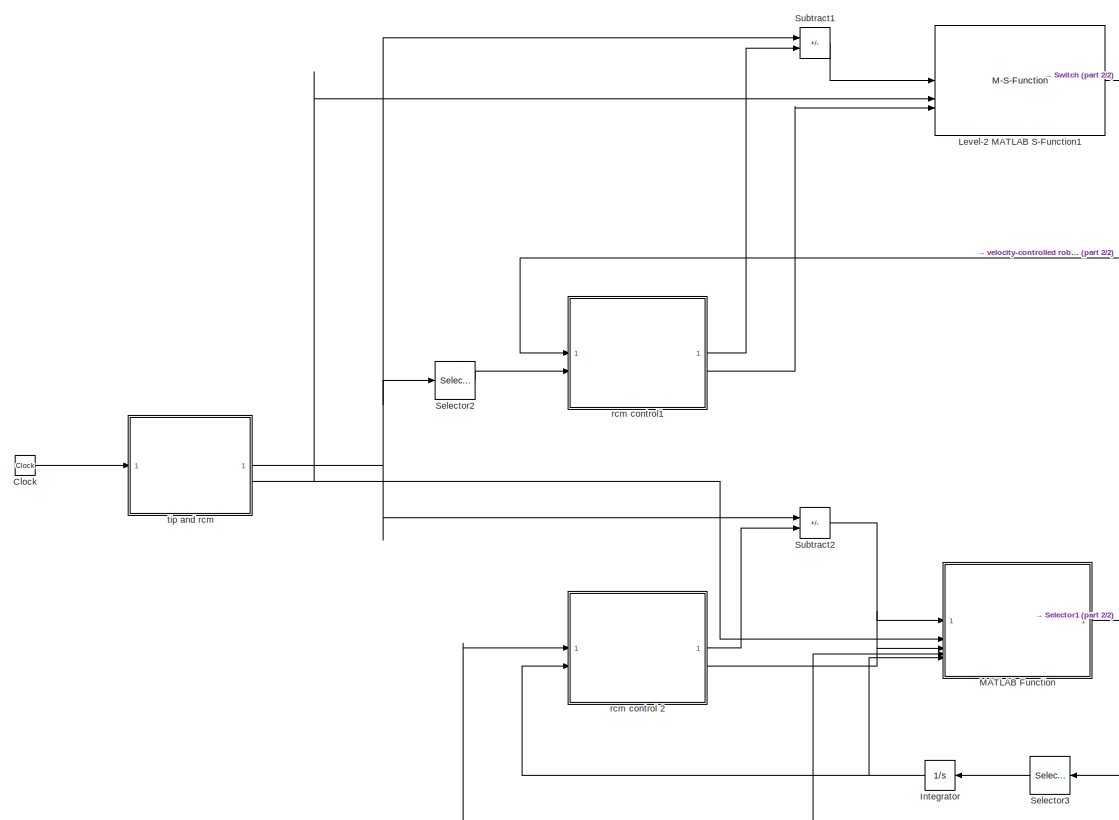
[diagram: root canvas - part 1/2, left side, full height]
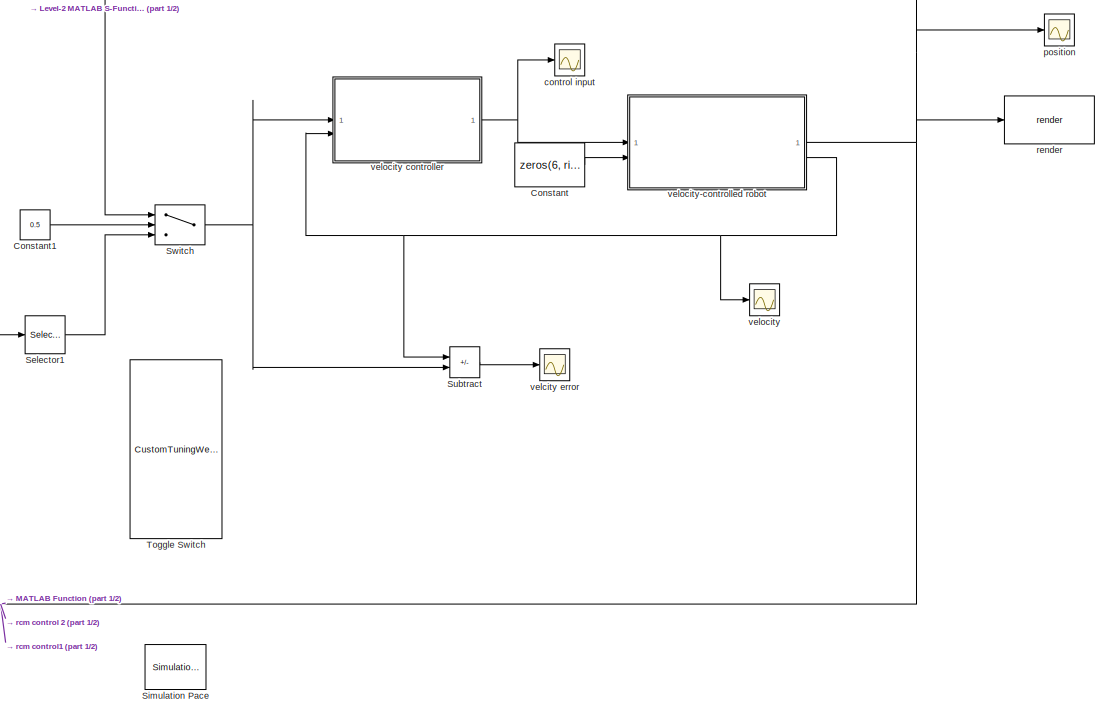
[diagram: root canvas - part 2/2, middle right region]
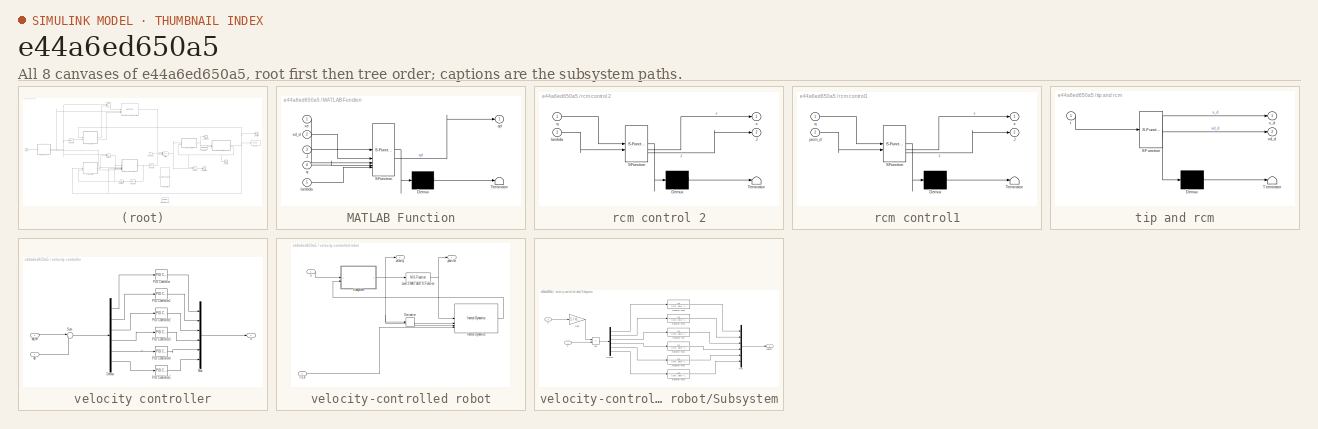
[diagram: thumbnail index - all 8 canvases of the model, root first then tree order]
MODEL slx_e44a6ed650a5
KIND model
CONFIG AbsTol = auto
CONFIG EnableMultiTasking = off
CONFIG FixedStep = 1e-3
CONFIG MaxStep = 0.2
CONFIG MinStep = auto
CONFIG PostLoadFcn = velocity_robot_rcm_ur5e_init
CONFIG RelTol = 1e-3
CONFIG SampleTimeConstraint = Unconstrained
CONFIG SolverName = VariableStepAuto
CONFIG StartTime = 0.0
CONFIG StopTime = 10
BLOCK [Clock] Clock
BLOCK [Constant] Constant
  Value = zeros(6, rigid_body.NumBodies)
  VectorParams1D = off
BLOCK [Constant] Constant1
  Value = 0.5
BLOCK [Integrator] Integrator
  InitialCondition = lambda0
BLOCK [M-S-Function] Level-2 MATLAB S-Function1
  FunctionName = general_task_controller
  Parameters = Kp, Ki
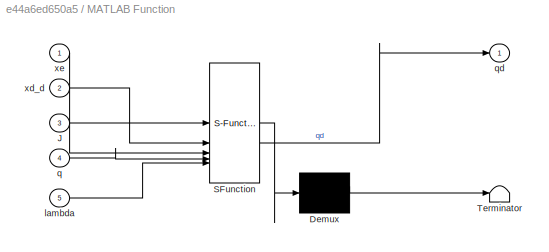
BLOCK [SubSystem] MATLAB Function
  ErrorFcn = Stateflow.Translate.translate
  PermitHierarchicalResolution = ExplicitOnly
  SFBlockType = MATLAB Function
  TreatAsAtomicUnit = on
BLOCK [Demux] MATLAB Function/ Demux 
  Outputs = 1
BLOCK [S-Function] MATLAB Function/ SFunction 
  EnableBusSupport = off
  FunctionName = sf_sfun
  Parameters = init_joint_pos,lambda0,robot
  PortCounts = [5 2]
  SFcnIsStateOwnerBlock = off
  SFunctionDeploymentMode = off
  Tag = Stateflow S-Function 4
BLOCK [Terminator] MATLAB Function/ Terminator 
BLOCK [Inport] MATLAB Function/J
  Port = 3
BLOCK [Inport] MATLAB Function/lambda
  Port = 5
BLOCK [Inport] MATLAB Function/q
  Port = 4
BLOCK [Outport] MATLAB Function/qd
BLOCK [Inport] MATLAB Function/xd_d
  Port = 2
BLOCK [Inport] MATLAB Function/xe
BLOCK [Selector] Selector1
  IndexOptions = Index vector (dialog)
  Indices = 1:6
  InputPortWidth = 7
  OutputSizes = 1
BLOCK [Selector] Selector2
  IndexOptions = Index vector (dialog)
  Indices = [4:6]
  InputPortWidth = 6
  OutputSizes = 1
BLOCK [Selector] Selector3
  IndexOptions = Index vector (dialog)
  Indices = 7
  InputPortWidth = 7
  OutputSizes = 1
BLOCK [Reference] Simulation Pace  REF=aerolibanimutils/Simulation Pace
  AttributesFormatString = %<SleepMode>\n%<SimulationPace> sec/sec
  SourceBlock = aerolibanimutils/Simulation Pace
  SourceType = Simulation Pace
BLOCK [Sum] Subtract
  IconShape = rectangular
  Inputs = +-
BLOCK [Sum] Subtract1
  IconShape = rectangular
  Inputs = +-
BLOCK [Sum] Subtract2
  IconShape = rectangular
  Inputs = +-
BLOCK [Switch] Switch
  Criteria = u2 > Threshold
  InputSameDT = off
  SaturateOnIntegerOverflow = off
  Threshold = 1
BLOCK [CustomTuningWebBlock] Toggle Switch
  Configuration = {"components":[{"name":"CustomSwitchStateComponent","settings":{"position":[0,0,1,1],"showAllLabels":1,"states":[{"HitRegion":{"position":[0.5,0,1,0.5]},"Image":{"position":[0,0.24928571428571428,0.5014285714285714,1],"size":[0.5014285714285714,1],"src":"data:image\/svg+xml;base64,PHN2ZyB4bWxucz0iaHR0cDovL3d3dy53My5vcmcvMjAwMC9zdmciIHhtbG5zOnhsaW5rPSJodHRwOi8vd3d3LnczLm9yZy8xOTk5L3hsaW5rIiB2aWV3Qm...<+9332ch>
  LabelPosition = Hide
  ShowInitialText = on
BLOCK [Scope] control input
  ActiveDisplayYMaximum = 22.933895716453652
  ActiveDisplayYMinimum = -32.208753353468353
  Floating = off
  GraphicalSettings = {"AxesScalingProperties":{"AlignXAxis":"Center","AlignYAxis":"Center","AutoScaleXAxisLimits":false,"AxesScaling":"Manual","AxesScalingNumUpdates":10,"ExpandOnly":true,"ScaleAxesLimitsAtStop":false,"XAxisDataRange":100,"YAxisDataRange":80},"DisplayProperties":{"ColorOrder":["auto","auto","auto","auto","auto","auto","auto","auto","auto","auto","auto","auto","auto","auto","auto","auto","auto","auto",...<+2737ch>
  MultipleDisplayCache = [{"MaxYLimMag":1.5048957484195251,"MaxYLimReal":22.933895716453652,"MinYLimMag":0,"MinYLimReal":-32.208753353468353,"PlotAsMagnitudePhase":false,"ShowGrid":true,"ShowLegend":false,"Title":"%<SignalLabel>","YLabel":""}]
  NumInputPorts = 1
  ScopeFrameLocation = window
  WasSavedAsWebScope = on
  WindowPosition = [0.000000,35.000000,1707.000000,996.000000,]
BLOCK [Scope] position
  ActiveDisplayYMaximum = 2.3090809737295266
  ActiveDisplayYMinimum = -2.8244686824941327
  DataLoggingVariableName = ScopeData2
  Floating = off
  GraphicalSettings = {"AxesScalingProperties":{"AlignXAxis":"Center","AlignYAxis":"Center","AutoScaleXAxisLimits":false,"AxesScaling":"Manual","AxesScalingNumUpdates":10,"ExpandOnly":true,"ScaleAxesLimitsAtStop":false,"XAxisDataRange":100,"YAxisDataRange":80},"DisplayProperties":{"ColorOrder":["auto","auto","auto","auto","auto","auto","auto","auto","auto","auto","auto","auto","auto","auto","auto","auto","auto","auto",...<+2845ch>
  MultipleDisplayCache = [{"MaxYLimMag":2.8244686824941323,"MaxYLimReal":2.3090809737295266,"MinYLimMag":0,"MinYLimReal":-2.8244686824941327,"PlotAsMagnitudePhase":false,"ShowGrid":true,"ShowLegend":false,"Title":"%<SignalLabel>","YLabel":""}]
  NumInputPorts = 1
  ScopeFrameLocation = window
  WasSavedAsWebScope = on
  WindowPosition = [-1879.000000,424.000000,897.000000,493.000000,]
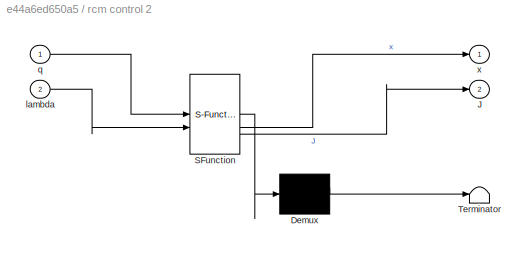
BLOCK [SubSystem] rcm control 2
  ErrorFcn = Stateflow.Translate.translate
  PermitHierarchicalResolution = ExplicitOnly
  SFBlockType = MATLAB Function
  TreatAsAtomicUnit = on
BLOCK [Demux] rcm control 2/ Demux 
  Outputs = 1
BLOCK [S-Function] rcm control 2/ SFunction 
  EnableBusSupport = off
  FunctionName = sf_sfun
  Parameters = robot
  PortCounts = [2 3]
  SFcnIsStateOwnerBlock = off
  SFunctionDeploymentMode = off
  Tag = Stateflow S-Function 3
BLOCK [Terminator] rcm control 2/ Terminator 
BLOCK [Outport] rcm control 2/J
  Port = 2
BLOCK [Inport] rcm control 2/lambda
  Port = 2
BLOCK [Inport] rcm control 2/q
BLOCK [Outport] rcm control 2/x
BLOCK [SubSystem] rcm control1
  ErrorFcn = Stateflow.Translate.translate
  PermitHierarchicalResolution = ExplicitOnly
  SFBlockType = MATLAB Function
  TreatAsAtomicUnit = on
BLOCK [Demux] rcm control1/ Demux 
  Outputs = 1
BLOCK [S-Function] rcm control1/ SFunction 
  EnableBusSupport = off
  FunctionName = sf_sfun
  Parameters = robot
  PortCounts = [2 3]
  SFcnIsStateOwnerBlock = off
  SFunctionDeploymentMode = off
  Tag = Stateflow S-Function 1
BLOCK [Terminator] rcm control1/ Terminator 
BLOCK [Outport] rcm control1/J
  Port = 2
BLOCK [Inport] rcm control1/prcm_d
  Port = 2
BLOCK [Inport] rcm control1/q
BLOCK [Outport] rcm control1/x
BLOCK [Reference] render  REF=my_library/render  (lib defined in slx_4b070192c2bc, slx_8dfaa4fb899d, +2 more)
  SourceBlock = my_library/render
  SourceProductName = MyLibrary
BLOCK [SubSystem] tip and rcm
  ErrorFcn = Stateflow.Translate.translate
  PermitHierarchicalResolution = ExplicitOnly
  SFBlockType = MATLAB Function
  TreatAsAtomicUnit = on
BLOCK [Demux] tip and rcm/ Demux 
  Outputs = 1
BLOCK [S-Function] tip and rcm/ SFunction 
  EnableBusSupport = off
  FunctionName = sf_sfun
  Parameters = P1,P2,Prcm
  PortCounts = [1 3]
  SFcnIsStateOwnerBlock = off
  SFunctionDeploymentMode = off
  Tag = Stateflow S-Function 2
BLOCK [Terminator] tip and rcm/ Terminator 
BLOCK [Inport] tip and rcm/t
BLOCK [Outport] tip and rcm/x_d
BLOCK [Outport] tip and rcm/xd_d
  Port = 2
BLOCK [Scope] velcity error
  ActiveDisplayYMaximum = 1.2644036489963626
  ActiveDisplayYMinimum = -2.7687330106356525
  DataLoggingVariableName = ScopeData3
  Floating = off
  GraphicalSettings = {"Style":{"BackgroundColor":[0.12941176470588237,0.12941176470588237,0.12941176470588237],"AxesColor":[0.07058823529411765,0.07058823529411765,0.07058823529411765],"LabelsColor":[0.8509803921568627,0.8509803921568627,0.8509803921568627],"PreserveColors":false,"Visible":[true,true,true,true,true,true],"LineStyle":["-","-","-","-","-","-"],"LineWidth":[1.5,1.5,1.5,1.5,1.5,1.5],"BarWidth":[0.9,0.9,0....<+2590ch>
  MultipleDisplayCache = [{"MaxYLimMag":0.062044339452108591,"MaxYLimReal":1.2644036489963626,"MinYLimMag":0,"MinYLimReal":-2.7687330106356525,"PlotAsMagnitudePhase":false,"ShowGrid":true,"ShowLegend":true,"Title":"%<SignalLabel>","YLabel":""}]
  NumInputPorts = 1
  ScopeFrameLocation = window
  ShowLegend = on
  WasSavedAsWebScope = on
  WindowPosition = [-1024.000000,36.000000,2048.000000,1081.000000,]
BLOCK [Scope] velocity
  ActiveDisplayYMaximum = 1.2050336725047781
  ActiveDisplayYMinimum = -0.85039539593804636
  DataLoggingVariableName = ScopeData1
  Floating = off
  GraphicalSettings = {"Style":{"BackgroundColor":[0.12941176470588237,0.12941176470588237,0.12941176470588237],"AxesColor":[0.07058823529411765,0.07058823529411765,0.07058823529411765],"LabelsColor":[0.8509803921568627,0.8509803921568627,0.8509803921568627],"PreserveColors":false,"Visible":[true,true,true,true,true,true,true],"LineStyle":["-","-","-","-","-","-","-"],"LineWidth":[1.5,1.5,1.5,1.5,1.5,1.5,1.5],"BarWidth...<+2971ch>
  MultipleDisplayCache = [{"MaxYLimMag":1.2494134396573697,"MaxYLimReal":1.2050336725047781,"MinYLimMag":0,"MinYLimReal":-0.85039539593804636,"PlotAsMagnitudePhase":false,"ShowGrid":true,"ShowLegend":true,"Title":"%<SignalLabel>","YLabel":""}]
  NumInputPorts = 1
  ScopeFrameLocation = window
  ShowLegend = on
  WasSavedAsWebScope = on
  WindowPosition = [1.000000,49.000000,1707.000000,996.000000,]
BLOCK [SubSystem] velocity controller
BLOCK [Demux] velocity controller/Demux
  Outputs = 6
BLOCK [Mux] velocity controller/Mux
  DisplayOption = bar
  Inputs = 6
BLOCK [Reference] velocity controller/PID Controller  REF=slpidlib/PID Controller
  LibrarySourceBlock = simulink/Continuous/PID Controller
  SourceBlock = slpidlib/PID Controller
  SourceType = PID 1dof
BLOCK [Reference] velocity controller/PID Controller1  REF=slpidlib/PID Controller
  LibrarySourceBlock = simulink/Continuous/PID Controller
  SourceBlock = slpidlib/PID Controller
  SourceType = PID 1dof
BLOCK [Reference] velocity controller/PID Controller2  REF=slpidlib/PID Controller
  LibrarySourceBlock = simulink/Continuous/PID Controller
  SourceBlock = slpidlib/PID Controller
  SourceType = PID 1dof
BLOCK [Reference] velocity controller/PID Controller3  REF=slpidlib/PID Controller
  LibrarySourceBlock = simulink/Continuous/PID Controller
  SourceBlock = slpidlib/PID Controller
  SourceType = PID 1dof
BLOCK [Reference] velocity controller/PID Controller4  REF=slpidlib/PID Controller
  LibrarySourceBlock = simulink/Continuous/PID Controller
  SourceBlock = slpidlib/PID Controller
  SourceType = PID 1dof
BLOCK [Reference] velocity controller/PID Controller5  REF=slpidlib/PID Controller
  LibrarySourceBlock = simulink/Continuous/PID Controller
  SourceBlock = slpidlib/PID Controller
  SourceType = PID 1dof
BLOCK [Sum] velocity controller/Sum
  Inputs = |+-
BLOCK [Inport] velocity controller/qd
  Port = 2
BLOCK [Inport] velocity controller/qd_ref
BLOCK [Outport] velocity controller/u
BLOCK [SubSystem] velocity-controlled robot
BLOCK [Derivative] velocity-controlled robot/Derivative
BLOCK [Inport] velocity-controlled robot/FExt
  Port = 2
BLOCK [Reference] velocity-controlled robot/Inverse Dynamics  REF=robotmaniplib/Inverse Dynamics
  SourceBlock = robotmaniplib/Inverse Dynamics
  SourceType = Inverse Dynamics
BLOCK [M-S-Function] velocity-controlled robot/Level-2 MATLAB S-Function
  FunctionName = general_integrator
  Parameters = init_joint_pos
BLOCK [SubSystem] velocity-controlled robot/Subsystem
BLOCK [Sum] velocity-controlled robot/Subsystem/Add
  IconShape = rectangular
  Inputs = -+
BLOCK [Demux] velocity-controlled robot/Subsystem/Demux
  Outputs = 6
BLOCK [Gain] velocity-controlled robot/Subsystem/Gain
  Gain = 1 ./ r(:)
BLOCK [Mux] velocity-controlled robot/Subsystem/Mux
  DisplayOption = bar
  Inputs = 6
BLOCK [TransferFcn] velocity-controlled robot/Subsystem/Transfer Fcn
  Denominator = [J(3), B(3) + K(3)^2/RR(3)] * r(3)
BLOCK [TransferFcn] velocity-controlled robot/Subsystem/Transfer Fcn1
  Denominator = [J(4), B(4) + K(4)^2/RR(4)] * r(4)
BLOCK [TransferFcn] velocity-controlled robot/Subsystem/Transfer Fcn2
  Denominator = [J(5), B(5) + K(5)^2/RR(5)] * r(5)
BLOCK [TransferFcn] velocity-controlled robot/Subsystem/Transfer Fcn3
  Denominator = [J(6), B(6) + K(6)^2/RR(6)] * r(6)
BLOCK [TransferFcn] velocity-controlled robot/Subsystem/Transfer Fcn4
  Denominator = [J(2), B(2) + K(2)^2/RR(2)] * r(2)
BLOCK [TransferFcn] velocity-controlled robot/Subsystem/Transfer Fcn5
  Denominator = [J(1), B(1) + K(1)^2/RR(1)] * r(1)
BLOCK [Inport] velocity-controlled robot/Subsystem/d
  Port = 2
BLOCK [Inport] velocity-controlled robot/Subsystem/u
BLOCK [Outport] velocity-controlled robot/Subsystem/velocity
BLOCK [Outport] velocity-controlled robot/position
BLOCK [Inport] velocity-controlled robot/u
BLOCK [Outport] velocity-controlled robot/velocity
  Port = 2
LINE Clock:1 -> tip and rcm:1
LINE Constant1:1 -> Switch:2
LINE Constant:1 -> velocity-controlled robot:2
NET Integrator:1 -> MATLAB Function:5, rcm control 2:2
LINE Level-2 MATLAB S-Function1:1 -> Switch:1
NET MATLAB Function:1 -> Selector1:1, Selector3:1
LINE Selector1:1 -> Switch:3
LINE Selector2:1 -> rcm control1:2
LINE Selector3:1 -> Integrator:1
LINE Subtract1:1 -> Level-2 MATLAB S-Function1:1
LINE Subtract2:1 -> MATLAB Function:1
LINE Subtract:1 -> velcity error:1
NET Switch:1 -> Subtract:2, velocity controller:1
LINE rcm control 2:1 -> Subtract2:2
LINE rcm control 2:2 -> MATLAB Function:3
LINE rcm control1:1 -> Subtract1:2
LINE rcm control1:2 -> Level-2 MATLAB S-Function1:3
NET tip and rcm:1 -> Selector2:1, Subtract1:1, Subtract2:1
NET tip and rcm:2 -> Level-2 MATLAB S-Function1:2, MATLAB Function:2
LINE velocity controller/Demux:1 -> velocity controller/PID Controller:1
LINE velocity controller/Demux:2 -> velocity controller/PID Controller1:1
LINE velocity controller/Demux:3 -> velocity controller/PID Controller2:1
LINE velocity controller/Demux:4 -> velocity controller/PID Controller3:1
LINE velocity controller/Demux:5 -> velocity controller/PID Controller4:1
LINE velocity controller/Demux:6 -> velocity controller/PID Controller5:1
LINE velocity controller/Mux:1 -> velocity controller/u:1
LINE velocity controller/PID Controller1:1 -> velocity controller/Mux:2
LINE velocity controller/PID Controller2:1 -> velocity controller/Mux:3
LINE velocity controller/PID Controller3:1 -> velocity controller/Mux:4
LINE velocity controller/PID Controller4:1 -> velocity controller/Mux:5
LINE velocity controller/PID Controller5:1 -> velocity controller/Mux:6
LINE velocity controller/PID Controller:1 -> velocity controller/Mux:1
LINE velocity controller/Sum:1 -> velocity controller/Demux:1
LINE velocity controller/qd:1 -> velocity controller/Sum:2
LINE velocity controller/qd_ref:1 -> velocity controller/Sum:1
NET velocity controller:1 -> control input:1, velocity-controlled robot:1
LINE velocity-controlled robot/Derivative:1 -> velocity-controlled robot/Inverse Dynamics:3
LINE velocity-controlled robot/FExt:1 -> velocity-controlled robot/Inverse Dynamics:4
LINE velocity-controlled robot/Inverse Dynamics:1 -> velocity-controlled robot/Subsystem:2
NET velocity-controlled robot/Level-2 MATLAB S-Function:1 -> velocity-controlled robot/Inverse Dynamics:1, velocity-controlled robot/position:1
LINE velocity-controlled robot/Subsystem/Add:1 -> velocity-controlled robot/Subsystem/Demux:1
LINE velocity-controlled robot/Subsystem/Demux:1 -> velocity-controlled robot/Subsystem/Transfer Fcn5:1
LINE velocity-controlled robot/Subsystem/Demux:2 -> velocity-controlled robot/Subsystem/Transfer Fcn4:1
LINE velocity-controlled robot/Subsystem/Demux:3 -> velocity-controlled robot/Subsystem/Transfer Fcn:1
LINE velocity-controlled robot/Subsystem/Demux:4 -> velocity-controlled robot/Subsystem/Transfer Fcn1:1
LINE velocity-controlled robot/Subsystem/Demux:5 -> velocity-controlled robot/Subsystem/Transfer Fcn2:1
LINE velocity-controlled robot/Subsystem/Demux:6 -> velocity-controlled robot/Subsystem/Transfer Fcn3:1
LINE velocity-controlled robot/Subsystem/Gain:1 -> velocity-controlled robot/Subsystem/Add:1
LINE velocity-controlled robot/Subsystem/Mux:1 -> velocity-controlled robot/Subsystem/velocity:1
LINE velocity-controlled robot/Subsystem/Transfer Fcn1:1 -> velocity-controlled robot/Subsystem/Mux:4
LINE velocity-controlled robot/Subsystem/Transfer Fcn2:1 -> velocity-controlled robot/Subsystem/Mux:5
LINE velocity-controlled robot/Subsystem/Transfer Fcn3:1 -> velocity-controlled robot/Subsystem/Mux:6
LINE velocity-controlled robot/Subsystem/Transfer Fcn4:1 -> velocity-controlled robot/Subsystem/Mux:2
LINE velocity-controlled robot/Subsystem/Transfer Fcn5:1 -> velocity-controlled robot/Subsystem/Mux:1
LINE velocity-controlled robot/Subsystem/Transfer Fcn:1 -> velocity-controlled robot/Subsystem/Mux:3
LINE velocity-controlled robot/Subsystem/d:1 -> velocity-controlled robot/Subsystem/Gain:1
LINE velocity-controlled robot/Subsystem/u:1 -> velocity-controlled robot/Subsystem/Add:2
NET velocity-controlled robot/Subsystem:1 -> velocity-controlled robot/Derivative:1, velocity-controlled robot/Inverse Dynamics:2, velocity-controlled robot/Level-2 MATLAB S-Function:1, velocity-controlled robot/velocity:1
LINE velocity-controlled robot/u:1 -> velocity-controlled robot/Subsystem:1
NET velocity-controlled robot:1 -> MATLAB Function:4, position:1, rcm control 2:1, rcm control1:1, render:1
NET velocity-controlled robot:2 -> Subtract:1, velocity controller:2, velocity:1
note: NET lines group one-source signal fan-out (src -> all destinations, sorted); 1:1 wires keep LINE
CHART rcm control1 states=1 transitions=1
  STATE_LABEL 'eML_blk_kernel()'
  STATE_LABEL 'SCRIPT:\nfunction [x, J] = fcn(q, prcm_d, robot)\n% [tip, rcm, Jrcm, J2] = classical_rcm_jacobian(robot, q, lambda, robot.L);\n\n[Jrcm, ~, rcm, ~, xyz, J2] = rcm_jacobian(robot, q, zeros(length(q), 1), robot.p1, robot.p2, prcm_d);\n\nJ =  [J2; Jrcm];\nx  = [xyz; rcm];'
CHART tip and rcm states=1 transitions=1
  STATE_LABEL 'eML_blk_kernel()'
  STATE_LABEL 'SCRIPT:\nfunction [x_d, xd_d] = fcn(P2, t, P1, Prcm)\ntip_d = P2 +  [0; 0.04*sin(t); 0.04 * cos(t)];\ntipd_d = [0; 0.04*cos(t); -0.04 *sin(t)];\nrcm_d = Prcm(:);\nrcmd_d = [0;0;0];\nx_d = [tip_d; rcm_d];\nxd_d = [tipd_d; rcmd_d];\n'
CHART rcm control 2 states=1 transitions=1
  STATE_LABEL 'eML_blk_kernel()'
  STATE_LABEL 'SCRIPT:\nfunction [x, J] = fcn(q, lambda, robot)\n[tip, rcm, Jrcm, J2] = classical_rcm_jacobian(robot, q, lambda, robot.p1, robot.p2);\nJ =  [J2,zeros(3,1); Jrcm];\nx  = [tip; rcm];'
CHART MATLAB Function states=1 transitions=1
  STATE_LABEL 'eML_blk_kernel()'
  STATE_LABEL "SCRIPT:\nfunction qd = fcn(xe, xd_d, J, q, init_joint_pos, lambda, lambda0,robot)\nKp = 10 * ones(1,6);\nxd = xd_d + Kp(:) .* xe;\nM = mass_matrix(robot, q);\nM = [M, zeros(6,1); zeros(1,6), 0.01];\nqd = (M \\ J') * ((J * (M \\ J')) \\ xd);\n% JJt = J * J';\n% w = -100 * [q(1) - init_joint_pos(1); 0; 0; 0; 0; 0; 0];\n% qd = J' * (JJt \\ xd) + (eye(7) - J'*(JJt \\ J)) * w;\n\n"
CHART  states=0 transitions=0
CHART  states=0 transitions=0
CHART  states=0 transitions=0
CHART  states=0 transitions=0
